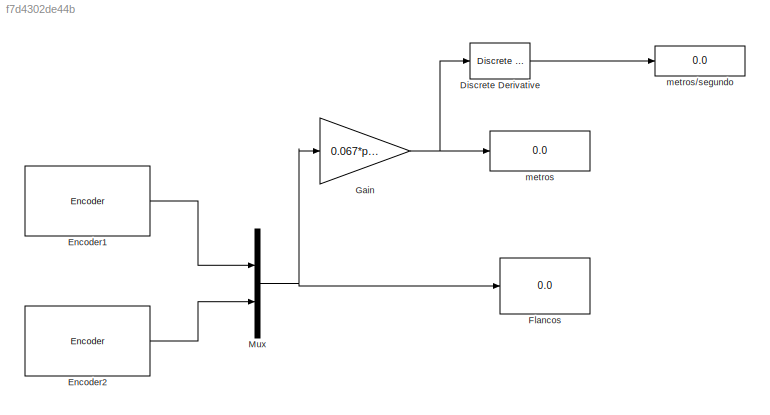
MODEL slx_f7d4302de44b
KIND model
CONFIG AbsTol = auto
CONFIG EnableMultiTasking = on
CONFIG FixedStep = auto
CONFIG MaxStep = auto
CONFIG MinStep = auto
CONFIG RelTol = 1e-3
CONFIG SampleTimeConstraint = Unconstrained
CONFIG SolverName = FixedStepAuto
CONFIG StartTime = 0.0
CONFIG StopTime = inf
BLOCK [Reference] Discrete Derivative  REF=simulink/Discrete/Discrete Derivative
  SourceBlock = simulink/Discrete/Discrete Derivative
  SourceType = Discrete Derivative
BLOCK [Reference] Encoder1  REF=arduinosensorlib/Encoder
  SourceBlock = arduinosensorlib/Encoder
  SourceType = Arduino Rotary Encoder
BLOCK [Reference] Encoder2  REF=arduinosensorlib/Encoder
  SourceBlock = arduinosensorlib/Encoder
  SourceType = Arduino Rotary Encoder
BLOCK [Display] Flancos
  Decimation = 1
BLOCK [Gain] Gain
  Gain = 0.067*pi/1503
BLOCK [Mux] Mux
  DisplayOption = bar
  Inputs = 2
BLOCK [Display] metros
  Decimation = 1
BLOCK [Display] metros//segundo
  Decimation = 1
LINE Discrete Derivative:1 -> metros//segundo:1
LINE Encoder1:1 -> Mux:1
LINE Encoder2:1 -> Mux:2
NET Gain:1 -> Discrete Derivative:1, metros:1
NET Mux:1 -> Flancos:1, Gain:1
note: NET lines group one-source signal fan-out (src -> all destinations, sorted); 1:1 wires keep LINE
